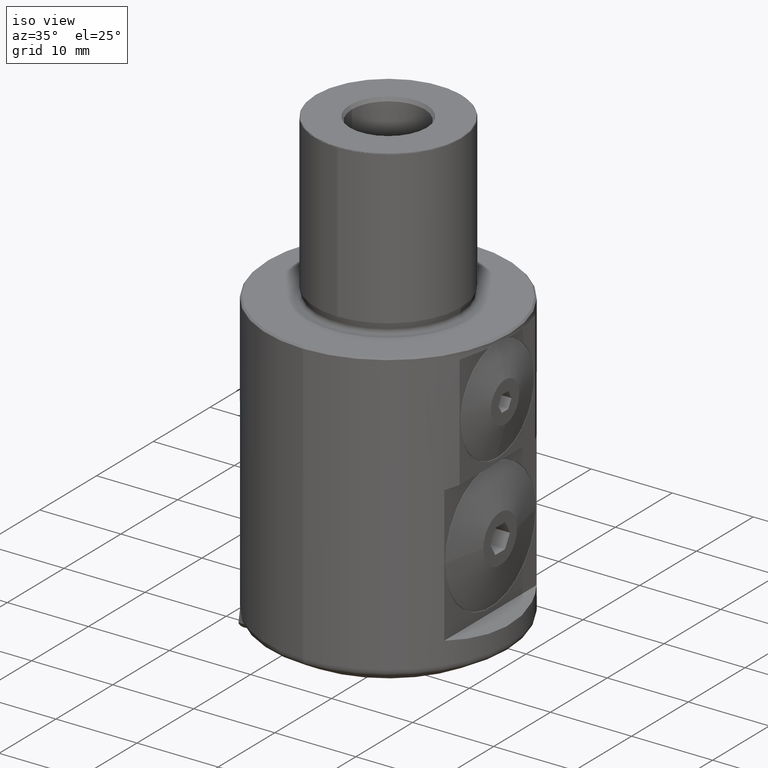
[diagram: clean part render]
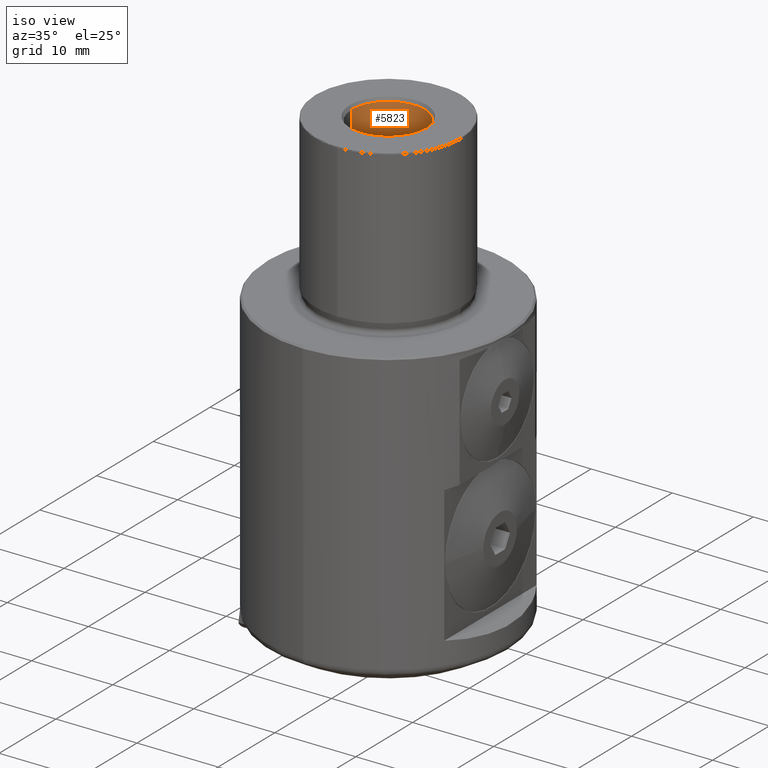
[diagram: same view with one face highlighted and labeled with its STEP entity id]
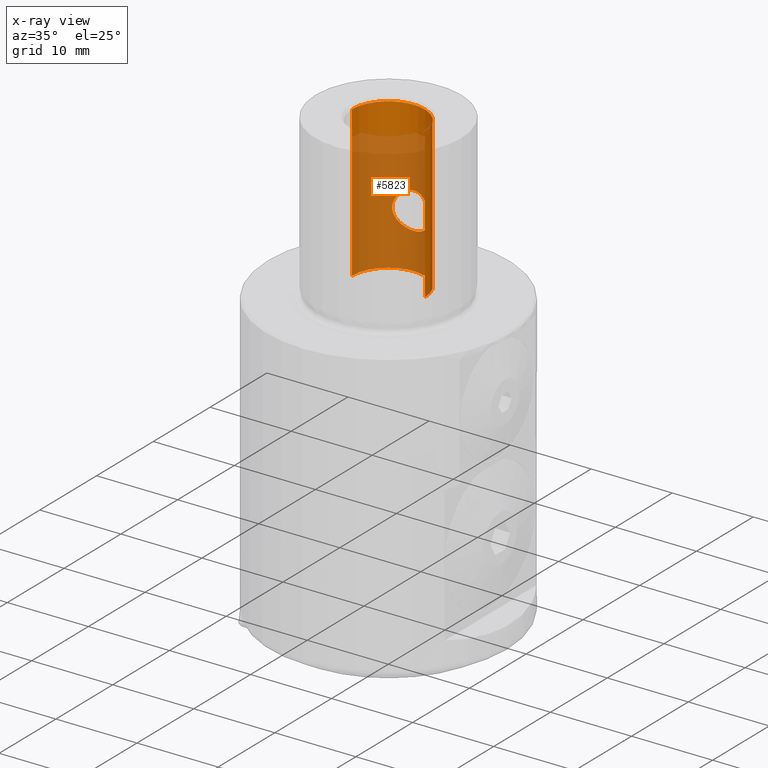
[diagram: x-ray of the same camera — body ghosted, the highlighted face saturated]
A machine part, iso view. The second image highlights one B-rep face of the part: STEP entity #5823.
The next image is the same camera in x-ray: the body ghosted, the highlighted face saturated — about 71% of this face is hidden behind the body in this view.
In plain terms, the highlighted cylindrical surface (partial cylindrical patch) has radius 4.5 mm, axis along (-0, -0, 1).
Its self-contained STEP definition (entity closure, byte-faithful):
#2043=EDGE_CURVE('NONE',#3871,#5033,#5984,.T.);
#2503=VERTEX_POINT('NONE',#6491);
#2773=EDGE_CURVE('NONE',#5431,#5463,#6791,.F.);
#3447=EDGE_CURVE('NONE',#4595,#5033,#7537,.T.);
#3871=VERTEX_POINT('NONE',#8015);
#4595=VERTEX_POINT('NONE',#8816);
#4611=EDGE_CURVE('NONE',#2503,#3871,#8834,.T.);
#4739=EDGE_CURVE('NONE',#2503,#4595,#8969,.T.);
#5033=VERTEX_POINT('NONE',#9290);
#5135=EDGE_CURVE('NONE',#5463,#5431,#9402,.F.);
#5431=VERTEX_POINT('NONE',#9719);
#5463=VERTEX_POINT('NONE',#9754);
#5823=ADVANCED_FACE('NONE',(#10159,#10160),#10161,.F.);
#5984=LINE('',#10442,#10443);
#6491=CARTESIAN_POINT('',(4.5,-1.0715671514179E-014,0.999999999999975));
#6791=B_SPLINE_CURVE_WITH_KNOTS('',3,(#13039,#13040,#13041,#13042,#13043,#13044,#13045,#13046,#13047,#13048,#13049,#13050,#13051,#13052,#13053,#13054,#13055,#13056,#13057,#13058,#13059,#13060,#13061,#13062,#13063,#13064,#13065,#13066,#13067,#13068,#13069,#13070,#13071,#13072,#13073,#13074,#13075,#13076,#13077,#13078,#13079,#13080,#13081,#13082,#13083,#13084,#13085,#13086,#13087,#13088),.UNSPECIFIED.,.F.,.F.,(4,2,2,2,2,2,2,2,2,2,2,2,2,2,2,2,2,2,2,2,2,2,2,2,4),(1.73211840396663,2.16396754520846,2.59581668645028,3.02766582769211,3.45951496893394,3.89136411017576,4.32321325141759,4.75506239265941,5.18691153390124,5.6199411348929,6.05297073588456,6.48600033687621,6.91902993786787,7.35205953885953,7.78508913985119,8.21811874084285,8.6511483418345,9.08299748307633,9.51484662431816,9.94669576555998,10.3785449068018,10.8103940480436,11.2422431892855,11.6740923305273,12.1059414717691),.UNSPECIFIED.);
#7537=CIRCLE('',#14794,4.5);
#8015=CARTESIAN_POINT('',(-4.5,1.12667625737953E-014,0.999999999999975));
#8816=CARTESIAN_POINT('',(4.5,-1.0715671514179E-014,19.5669872981078));
#8834=CIRCLE('',#18479,4.5);
#8969=LINE('',#18867,#18868);
#9290=CARTESIAN_POINT('',(-4.5,1.12667625737953E-014,19.5669872981078));
#9402=B_SPLINE_CURVE_WITH_KNOTS('',3,(#20393,#20394,#20395,#20396,#20397,#20398,#20399,#20400,#20401,#20402,#20403,#20404,#20405,#20406,#20407,#20408,#20409,#20410,#20411,#20412,#20413,#20414,#20415,#20416,#20417,#20418,#20419,#20420,#20421,#20422,#20423,#20424,#20425,#20426,#20427,#20428,#20429,#20430,#20431,#20432,#20433,#20434,#20435,#20436,#20437,#20438,#20439,#20440,#20441,#20442,#20443),.UNSPECIFIED.,.F.,.F.,(4,2,2,2,2,2,2,2,2,2,2,2,3,2,2,2,2,2,2,2,2,2,2,2,4),(-5.18691153390124,-4.75506239265941,-4.32321325141759,-3.89136411017576,-3.45951496893394,-3.02766582769211,-2.59581668645028,-2.16396754520846,-1.73211840396663,-1.29908880297497,-0.866059201983317,-0.433029600991658,0.0,0.433029600991658,0.866059201983316,1.29908880297497,1.73211840396663,2.16396754520846,2.59581668645028,3.02766582769211,3.45951496893394,3.89136411017576,4.32321325141759,4.75506239265941,5.18691153390124),.UNSPECIFIED.);
#9719=CARTESIAN_POINT('',(3.07243729948963E-015,4.50000000000002,10.0000000000001));
#9754=CARTESIAN_POINT('',(1.09912170679843E-014,4.5,5.5));
#10159=FACE_OUTER_BOUND('',#22658,.T.);
#10160=FACE_BOUND('',#22659,.T.);
#10161=CYLINDRICAL_SURFACE('',#22660,4.5);
#10442=CARTESIAN_POINT('',(-4.5,1.12667625737953E-014,20.0));
#10443=VECTOR('',#22881,1000.0);
#13039=CARTESIAN_POINT('',(-1.59099025766972,4.20936456012069,6.15900974233027));
#13040=CARTESIAN_POINT('',(-1.4926538823669,4.24653221638965,6.06067336702745));
#13041=CARTESIAN_POINT('',(-1.38141235194823,4.28459256969274,5.96794342578062));
#13042=CARTESIAN_POINT('',(-1.13829232721595,4.35549356007461,5.80364024422109));
#13043=CARTESIAN_POINT('',(-1.00640663428048,4.38827990145136,5.73205423057589));
#13044=CARTESIAN_POINT('',(-0.729886491326769,4.44264791967644,5.61640555138828));
#13045=CARTESIAN_POINT('',(-0.58498841357184,4.46424142100404,5.57225048707489));
#13046=CARTESIAN_POINT('',(-0.292022850089554,4.49292616944614,5.51403778203342));
#13047=CARTESIAN_POINT('',(-0.143949713747265,4.5,5.50000000000001));
#13048=CARTESIAN_POINT('',(0.143949713747286,4.5,5.50000000000001));
#13049=CARTESIAN_POINT('',(0.292022850089576,4.49292616944614,5.51403778203342));
#13050=CARTESIAN_POINT('',(0.584988413571861,4.46424142100404,5.57225048707489));
#13051=CARTESIAN_POINT('',(0.729886491326791,4.44264791967643,5.61640555138828));
#13052=CARTESIAN_POINT('',(1.0064066342805,4.38827990145136,5.73205423057589));
#13053=CARTESIAN_POINT('',(1.13829232721597,4.3554935600746,5.80364024422109));
#13054=CARTESIAN_POINT('',(1.38141235194825,4.28459256969273,5.96794342578062));
#13055=CARTESIAN_POINT('',(1.49265388236692,4.24653221638965,6.06067336702745));
#13056=CARTESIAN_POINT('',(1.68959543548229,4.17209530605278,6.25761492014282));
#13057=CARTESIAN_POINT('',(1.78236379610099,4.13295488945197,6.36898967293557));
#13058=CARTESIAN_POINT('',(1.94655896652664,4.05820711787993,6.61205518050908));
#13059=CARTESIAN_POINT('',(2.01800908894807,4.02267007875091,6.74375180511996));
#13060=CARTESIAN_POINT('',(2.13349807303117,3.9626281801797,7.01987603314506));
#13061=CARTESIAN_POINT('',(2.17762889484781,3.9381530874308,7.16457157774802));
#13062=CARTESIAN_POINT('',(2.23589184491938,3.9053687414191,7.45745650946368));
#13063=CARTESIAN_POINT('',(2.25000000000001,3.89711431702997,7.60565679966946));
#13064=CARTESIAN_POINT('',(2.25000000000001,3.89711431702997,7.89434320033056));
#13065=CARTESIAN_POINT('',(2.23589184491938,3.9053687414191,8.04254349053634));
#13066=CARTESIAN_POINT('',(2.17762889484781,3.9381530874308,8.33542842225199));
#13067=CARTESIAN_POINT('',(2.13349807303117,3.9626281801797,8.48012396685495));
#13068=CARTESIAN_POINT('',(2.01800908894807,4.02267007875091,8.75624819488006));
#13069=CARTESIAN_POINT('',(1.94655896652664,4.05820711787993,8.88794481949094));
#13070=CARTESIAN_POINT('',(1.78236379610099,4.13295488945197,9.13101032706444));
#13071=CARTESIAN_POINT('',(1.68959543548229,4.17209530605278,9.2423850798572));
#13072=CARTESIAN_POINT('',(1.49265388236692,4.24653221638965,9.43932663297257));
#13073=CARTESIAN_POINT('',(1.38141235194825,4.28459256969273,9.5320565742194));
#13074=CARTESIAN_POINT('',(1.13829232721597,4.3554935600746,9.69635975577893));
#13075=CARTESIAN_POINT('',(1.0064066342805,4.38827990145136,9.76794576942413));
#13076=CARTESIAN_POINT('',(0.729886491326792,4.44264791967643,9.88359444861174));
#13077=CARTESIAN_POINT('',(0.584988413571862,4.46424142100404,9.92774951292513));
#13078=CARTESIAN_POINT('',(0.292022850089576,4.49292616944614,9.9859622179666));
#13079=CARTESIAN_POINT('',(0.143949713747286,4.5,10.0));
#13080=CARTESIAN_POINT('',(-0.143949713747264,4.5,10.0));
#13081=CARTESIAN_POINT('',(-0.292022850089554,4.49292616944614,9.9859622179666));
#13082=CARTESIAN_POINT('',(-0.58498841357184,4.46424142100404,9.92774951292513));
#13083=CARTESIAN_POINT('',(-0.72988649132677,4.44264791967644,9.88359444861175));
#13084=CARTESIAN_POINT('',(-1.00640663428048,4.38827990145136,9.76794576942413));
#13085=CARTESIAN_POINT('',(-1.13829232721595,4.35549356007461,9.69635975577893));
#13086=CARTESIAN_POINT('',(-1.38141235194823,4.28459256969274,9.5320565742194));
#13087=CARTESIAN_POINT('',(-1.4926538823669,4.24653221638965,9.43932663297257));
#13088=CARTESIAN_POINT('',(-1.59099025766972,4.20936456012069,9.34099025766974));
#14794=AXIS2_PLACEMENT_3D('',#24477,#24478,#24479);
#18479=AXIS2_PLACEMENT_3D('',#25944,#25945,#25946);
#18867=CARTESIAN_POINT('',(4.5,-1.0715671514179E-014,20.0));
#18868=VECTOR('',#26052,1000.0);
#20393=CARTESIAN_POINT('',(1.59099025766974,4.20936456012068,9.34099025766974));
#20394=CARTESIAN_POINT('',(1.49265388236692,4.24653221638965,9.43932663297257));
#20395=CARTESIAN_POINT('',(1.38141235194825,4.28459256969273,9.5320565742194));
#20396=CARTESIAN_POINT('',(1.13829232721597,4.3554935600746,9.69635975577893));
#20397=CARTESIAN_POINT('',(1.0064066342805,4.38827990145136,9.76794576942413));
#20398=CARTESIAN_POINT('',(0.729886491326792,4.44264791967643,9.88359444861174));
#20399=CARTESIAN_POINT('',(0.584988413571862,4.46424142100404,9.92774951292513));
#20400=CARTESIAN_POINT('',(0.292022850089576,4.49292616944614,9.9859622179666));
#20401=CARTESIAN_POINT('',(0.143949713747286,4.5,10.0));
#20402=CARTESIAN_POINT('',(-0.143949713747264,4.5,10.0));
#20403=CARTESIAN_POINT('',(-0.292022850089554,4.49292616944614,9.9859622179666));
#20404=CARTESIAN_POINT('',(-0.58498841357184,4.46424142100404,9.92774951292513));
#20405=CARTESIAN_POINT('',(-0.72988649132677,4.44264791967644,9.88359444861175));
#20406=CARTESIAN_POINT('',(-1.00640663428048,4.38827990145136,9.76794576942413));
#20407=CARTESIAN_POINT('',(-1.13829232721595,4.35549356007461,9.69635975577893));
#20408=CARTESIAN_POINT('',(-1.38141235194823,4.28459256969274,9.5320565742194));
#20409=CARTESIAN_POINT('',(-1.4926538823669,4.24653221638965,9.43932663297257));
#20410=CARTESIAN_POINT('',(-1.68959543548227,4.17209530605279,9.2423850798572));
#20411=CARTESIAN_POINT('',(-1.78236379610097,4.13295488945198,9.13101032706445));
#20412=CARTESIAN_POINT('',(-1.94655896652662,4.05820711787994,8.88794481949094));
#20413=CARTESIAN_POINT('',(-2.01800908894805,4.02267007875092,8.75624819488006));
#20414=CARTESIAN_POINT('',(-2.13349807303115,3.96262818017971,8.48012396685495));
#20415=CARTESIAN_POINT('',(-2.17762889484779,3.93815308743081,8.335428422252));
#20416=CARTESIAN_POINT('',(-2.23589184491936,3.90536874141911,8.04254349053635));
#20417=CARTESIAN_POINT('',(-2.24999999999999,3.89711431702998,7.89434320033056));
#20418=CARTESIAN_POINT('',(-2.24999999999999,3.89711431702998,7.75000000000001));
#20419=CARTESIAN_POINT('',(-2.24999999999999,3.89711431702998,7.60565679966946));
#20420=CARTESIAN_POINT('',(-2.23589184491936,3.90536874141911,7.45745650946368));
#20421=CARTESIAN_POINT('',(-2.17762889484779,3.93815308743081,7.16457157774802));
#20422=CARTESIAN_POINT('',(-2.13349807303115,3.96262818017971,7.01987603314506));
#20423=CARTESIAN_POINT('',(-2.01800908894805,4.02267007875092,6.74375180511996));
#20424=CARTESIAN_POINT('',(-1.94655896652662,4.05820711787994,6.61205518050908));
#20425=CARTESIAN_POINT('',(-1.78236379610097,4.13295488945198,6.36898967293557));
#20426=CARTESIAN_POINT('',(-1.68959543548227,4.17209530605279,6.25761492014282));
#20427=CARTESIAN_POINT('',(-1.4926538823669,4.24653221638965,6.06067336702745));
#20428=CARTESIAN_POINT('',(-1.38141235194823,4.28459256969274,5.96794342578062));
#20429=CARTESIAN_POINT('',(-1.13829232721595,4.35549356007461,5.80364024422109));
#20430=CARTESIAN_POINT('',(-1.00640663428048,4.38827990145136,5.73205423057589));
#20431=CARTESIAN_POINT('',(-0.729886491326769,4.44264791967644,5.61640555138828));
#20432=CARTESIAN_POINT('',(-0.58498841357184,4.46424142100404,5.57225048707489));
#20433=CARTESIAN_POINT('',(-0.292022850089554,4.49292616944614,5.51403778203342));
#20434=CARTESIAN_POINT('',(-0.143949713747265,4.5,5.50000000000001));
#20435=CARTESIAN_POINT('',(0.143949713747286,4.5,5.50000000000001));
#20436=CARTESIAN_POINT('',(0.292022850089576,4.49292616944614,5.51403778203342));
#20437=CARTESIAN_POINT('',(0.584988413571861,4.46424142100404,5.57225048707489));
#20438=CARTESIAN_POINT('',(0.729886491326791,4.44264791967643,5.61640555138828));
#20439=CARTESIAN_POINT('',(1.0064066342805,4.38827990145136,5.73205423057589));
#20440=CARTESIAN_POINT('',(1.13829232721597,4.3554935600746,5.80364024422109));
#20441=CARTESIAN_POINT('',(1.38141235194825,4.28459256969273,5.96794342578062));
#20442=CARTESIAN_POINT('',(1.49265388236692,4.24653221638965,6.06067336702745));
#20443=CARTESIAN_POINT('',(1.59099025766974,4.20936456012068,6.15900974233027));
#22658=EDGE_LOOP('',(#27249,#27250,#27251,#27252));
#22659=EDGE_LOOP('',(#27253,#27254));
#22660=AXIS2_PLACEMENT_3D('',#27255,#27256,#27257);
#22881=DIRECTION('',(0.0,0.0,1.0));
#24477=CARTESIAN_POINT('',(0.0,0.0,19.5669872981078));
#24478=DIRECTION('',(0.0,-0.0,1.0));
#24479=DIRECTION('',(1.0,-2.38126033648422E-015,-0.0));
#25944=CARTESIAN_POINT('',(0.0,0.0,0.999999999999975));
#25945=DIRECTION('',(0.0,-0.0,1.0));
#25946=DIRECTION('',(1.0,-2.38126033648422E-015,-0.0));
#26052=DIRECTION('',(0.0,0.0,1.0));
#27249=ORIENTED_EDGE('',*,*,#2043,.F.);
#27250=ORIENTED_EDGE('',*,*,#4611,.F.);
#27251=ORIENTED_EDGE('',*,*,#4739,.T.);
#27252=ORIENTED_EDGE('',*,*,#3447,.T.);
#27253=ORIENTED_EDGE('',*,*,#2773,.T.);
#27254=ORIENTED_EDGE('',*,*,#5135,.T.);
#27255=CARTESIAN_POINT('',(0.0,0.0,20.0));
#27256=DIRECTION('',(-0.0,-0.0,1.0));
#27257=DIRECTION('',(1.0,-2.38126033648422E-015,0.0));